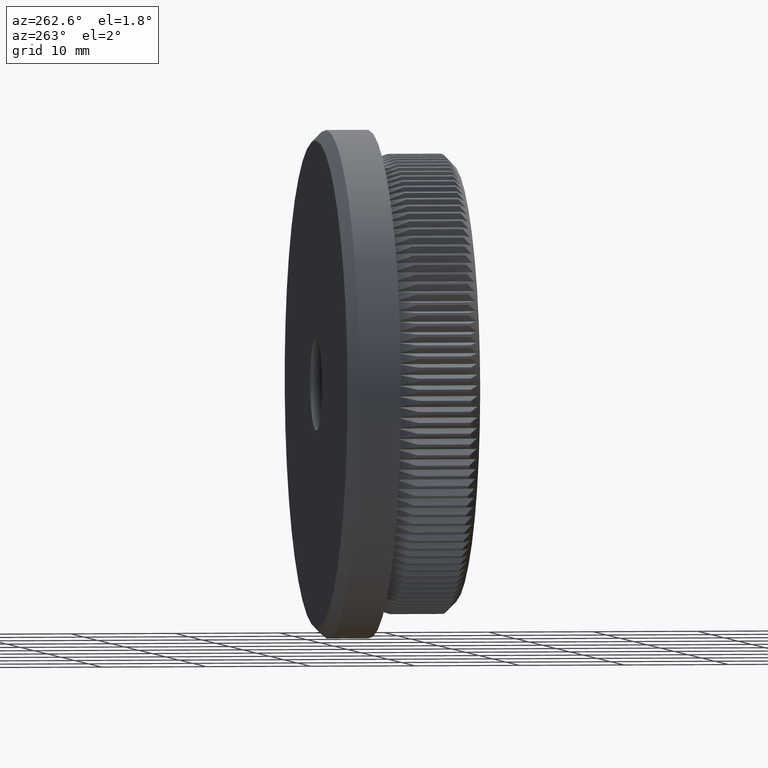
[diagram: clean part render]
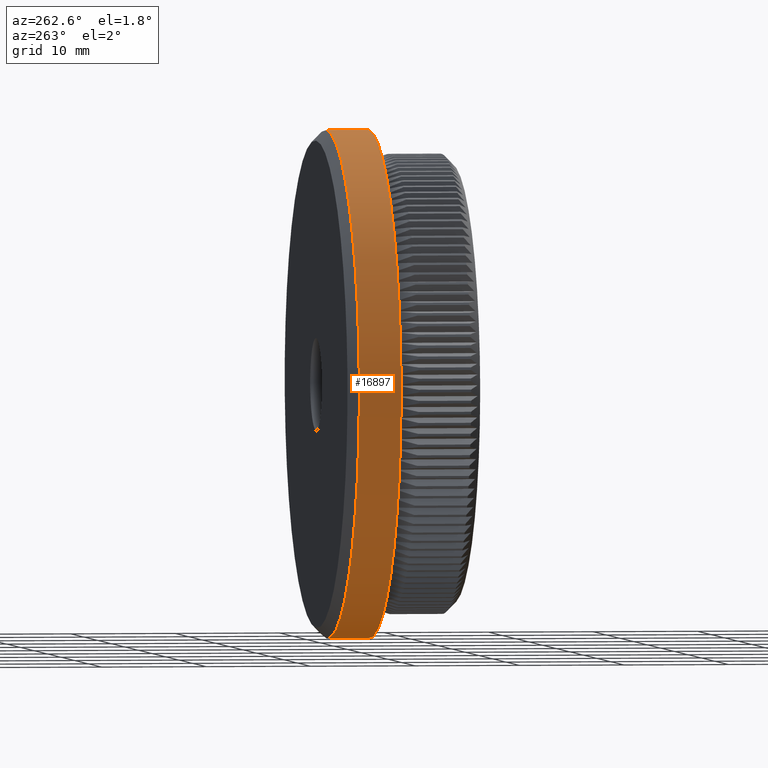
[diagram: same view with one face highlighted and labeled with its STEP entity id]
A machine part, auxiliary view. The second image highlights one B-rep face of the part: STEP entity #16897.
In plain terms, the highlighted cylindrical surface (partial cylindrical patch) has radius 24.15 mm, axis along (-0, -1, -0).
Its self-contained STEP definition (entity closure, byte-faithful):
#351 = CYLINDRICAL_SURFACE ( 'NONE', #30686, 24.14999999999999900 ) ;
#727 = FACE_OUTER_BOUND ( 'NONE', #16564, .T. ) ;
#2285 = ORIENTED_EDGE ( 'NONE', *, *, #26519, .T. ) ;
#5794 = CARTESIAN_POINT ( 'NONE',  ( 0.0000000000000000000, 11.99999999999999500, 0.0000000000000000000 ) ) ;
#7634 = VERTEX_POINT ( 'NONE', #25424 ) ;
#7682 = VECTOR ( 'NONE', #11596, 1000.000000000000000 ) ;
#8864 = DIRECTION ( 'NONE',  ( -0.0000000000000000000, -1.000000000000000000, -0.0000000000000000000 ) ) ;
#9347 = AXIS2_PLACEMENT_3D ( 'NONE', #9525, #12252, #12144 ) ;
#9525 = CARTESIAN_POINT ( 'NONE',  ( 0.0000000000000000000, 8.000000000000000000, 0.0000000000000000000 ) ) ;
#10009 = VECTOR ( 'NONE', #30896, 1000.000000000000000 ) ;
#10664 = EDGE_CURVE ( 'NONE', #10717, #10855, #20682, .T. ) ;
#10717 = VERTEX_POINT ( 'NONE', #21856 ) ;
#10855 = VERTEX_POINT ( 'NONE', #28545 ) ;
#11596 = DIRECTION ( 'NONE',  ( -0.0000000000000000000, -1.000000000000000000, -0.0000000000000000000 ) ) ;
#12014 = EDGE_CURVE ( 'NONE', #30371, #7634, #19497, .T. ) ;
#12144 = DIRECTION ( 'NONE',  ( 0.0000000000000000000, 0.0000000000000000000, -1.000000000000000000 ) ) ;
#12252 = DIRECTION ( 'NONE',  ( -0.0000000000000000000, -1.000000000000000000, -0.0000000000000000000 ) ) ;
#13693 = DIRECTION ( 'NONE',  ( 0.0000000000000000000, 0.0000000000000000000, 1.000000000000000000 ) ) ;
#15076 = ORIENTED_EDGE ( 'NONE', *, *, #10664, .F. ) ;
#15156 = CARTESIAN_POINT ( 'NONE',  ( 0.0000000000000000000, 0.0000000000000000000, -24.14999999999999900 ) ) ;
#16564 = EDGE_LOOP ( 'NONE', ( #15076, #2285, #21413, #23946 ) ) ;
#16897 = ADVANCED_FACE ( 'NONE', ( #727 ), #351, .T. ) ;
#19245 = DIRECTION ( 'NONE',  ( 0.0000000000000000000, 0.0000000000000000000, -1.000000000000000000 ) ) ;
#19497 = LINE ( 'NONE', #15156, #10009 ) ;
#19788 = CIRCLE ( 'NONE', #20124, 24.14999999999999900 ) ;
#20124 = AXIS2_PLACEMENT_3D ( 'NONE', #5794, #26280, #13693 ) ;
#20260 = CARTESIAN_POINT ( 'NONE',  ( 0.0000000000000000000, 11.99999999999999500, -24.14999999999999900 ) ) ;
#20682 = LINE ( 'NONE', #26930, #7682 ) ;
#21413 = ORIENTED_EDGE ( 'NONE', *, *, #12014, .T. ) ;
#21856 = CARTESIAN_POINT ( 'NONE',  ( 2.957522019940857900E-015, 11.99999999999999500, 24.14999999999999900 ) ) ;
#23497 = CARTESIAN_POINT ( 'NONE',  ( 0.0000000000000000000, 0.0000000000000000000, 0.0000000000000000000 ) ) ;
#23946 = ORIENTED_EDGE ( 'NONE', *, *, #25548, .F. ) ;
#25424 = CARTESIAN_POINT ( 'NONE',  ( 0.0000000000000000000, 8.000000000000000000, -24.14999999999999900 ) ) ;
#25548 = EDGE_CURVE ( 'NONE', #10855, #7634, #28865, .T. ) ;
#26280 = DIRECTION ( 'NONE',  ( -0.0000000000000000000, -1.000000000000000000, -0.0000000000000000000 ) ) ;
#26519 = EDGE_CURVE ( 'NONE', #10717, #30371, #19788, .T. ) ;
#26930 = CARTESIAN_POINT ( 'NONE',  ( 2.957522019940857900E-015, 0.0000000000000000000, 24.14999999999999900 ) ) ;
#28545 = CARTESIAN_POINT ( 'NONE',  ( 2.957522019940857900E-015, 8.000000000000000000, 24.14999999999999900 ) ) ;
#28865 = CIRCLE ( 'NONE', #9347, 24.14999999999999900 ) ;
#30371 = VERTEX_POINT ( 'NONE', #20260 ) ;
#30686 = AXIS2_PLACEMENT_3D ( 'NONE', #23497, #8864, #19245 ) ;
#30896 = DIRECTION ( 'NONE',  ( -0.0000000000000000000, -1.000000000000000000, -0.0000000000000000000 ) ) ;